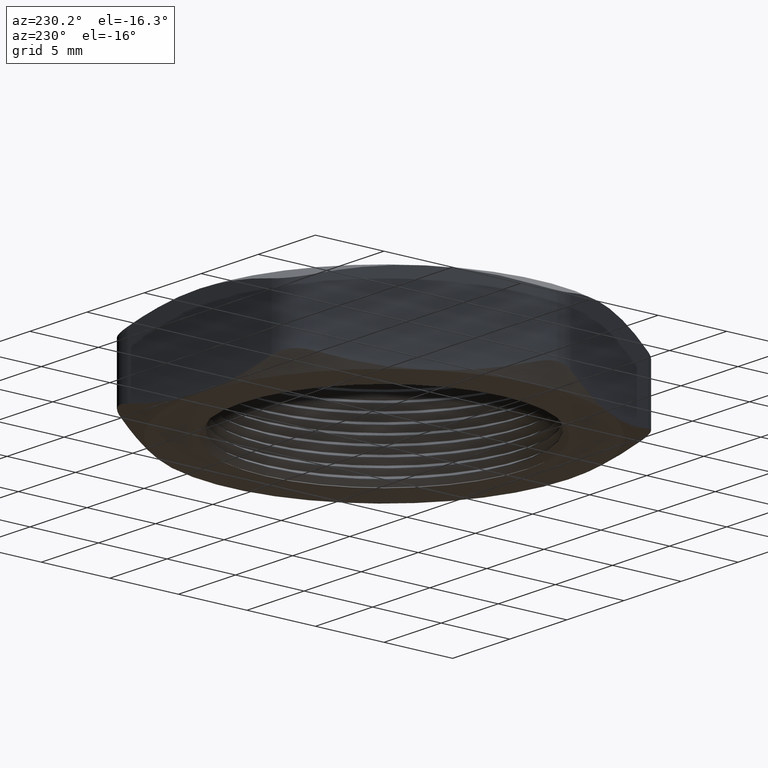
[diagram: clean part render]
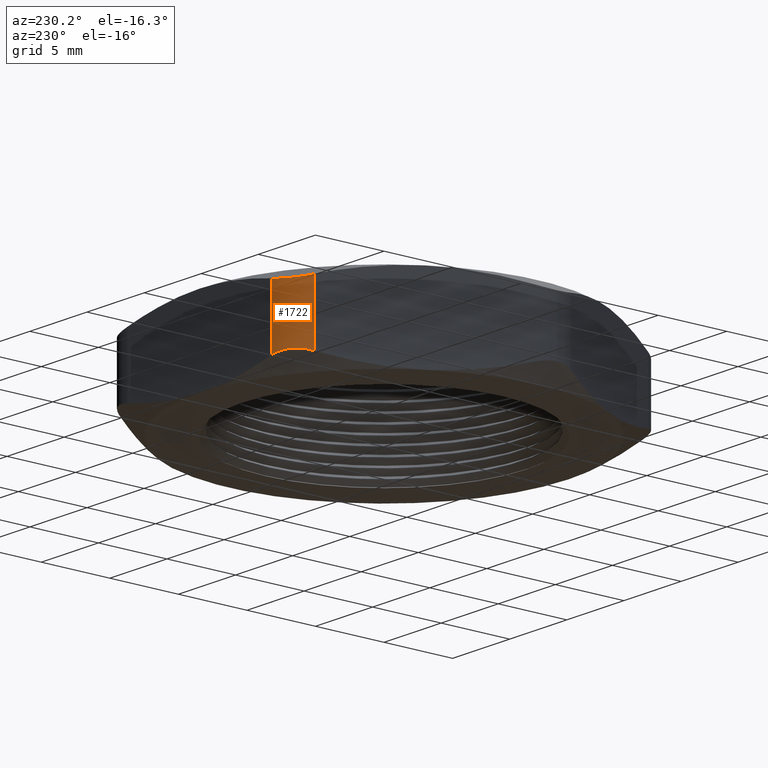
[diagram: same view with one face highlighted and labeled with its STEP entity id]
A machine part, auxiliary view. The second image highlights one B-rep face of the part: STEP entity #1722.
In plain terms, the highlighted cylindrical surface (partial cylindrical patch) has radius 2.54 mm, axis along (0, 0, -1).
Its self-contained STEP definition (entity closure, byte-faithful):
#399 = CARTESIAN_POINT ( 'NONE',  ( -0.3348631561299828000, 0.4800000000000001500, 0.03190638126214313800 ) ) ;
#400 = DIRECTION ( 'NONE',  ( 0.0000000000000000000, 0.0000000000000000000, -1.000000000000000000 ) ) ;
#401 = VECTOR ( 'NONE', #400, 39.37007874015748100 ) ;
#402 = CARTESIAN_POINT ( 'NONE',  ( -0.3348631561299828500, 0.4800000000000000900, 0.2399999999999999900 ) ) ;
#403 = LINE ( 'NONE', #402, #401 ) ;
#410 = CARTESIAN_POINT ( 'NONE',  ( -0.3348631561299828500, 0.4800000000000000900, 0.2080936187378568700 ) ) ;
#668 = VERTEX_POINT ( 'NONE', #806 ) ;
#806 = CARTESIAN_POINT ( 'NONE',  ( -0.2482606157515389600, 0.5300000000000001400, 0.03190638126214309000 ) ) ;
#825 = CYLINDRICAL_SURFACE ( 'NONE', #920, 0.09999999999999999200 ) ;
#826 = FACE_OUTER_BOUND ( 'NONE', #1724, .T. ) ;
#876 = DIRECTION ( 'NONE',  ( -1.000000000000000000, 0.0000000000000000000, 0.0000000000000000000 ) ) ;
#917 = DIRECTION ( 'NONE',  ( 0.0000000000000000000, 0.0000000000000000000, -1.000000000000000000 ) ) ;
#918 = CARTESIAN_POINT ( 'NONE',  ( -0.2482606157515389600, 0.4300000000000000500, 0.2399999999999999900 ) ) ;
#920 = AXIS2_PLACEMENT_3D ( 'NONE', #918, #917, #876 ) ;
#922 = B_SPLINE_CURVE_WITH_KNOTS ( 'NONE', 3,
 ( #926, #925, #1034, #1033, #1032, #1031, #1030, #1029, #1028, #1027 ),
 .UNSPECIFIED., .F., .F.,
 ( 4, 2, 2, 2, 4 ),
 ( 2.491306920542243800E-018, 0.0006680279323233929300, 0.001336055864646783300, 0.002004083796970176300, 0.002672111729293569100 ),
 .UNSPECIFIED. ) ;
#925 = CARTESIAN_POINT ( 'NONE',  ( -0.3305474258513002000, 0.4874750641144418000, 0.03402026000118035100 ) ) ;
#926 = CARTESIAN_POINT ( 'NONE',  ( -0.3348631561299828000, 0.4800000000000001500, 0.03190638126214313800 ) ) ;
#938 = DIRECTION ( 'NONE',  ( 0.0000000000000000000, 0.0000000000000000000, 1.000000000000000000 ) ) ;
#939 = VECTOR ( 'NONE', #938, 39.37007874015748100 ) ;
#940 = CARTESIAN_POINT ( 'NONE',  ( -0.2482606157515389000, 0.5300000000000001400, 0.2399999999999999900 ) ) ;
#941 = LINE ( 'NONE', #940, #939 ) ;
#950 = CARTESIAN_POINT ( 'NONE',  ( -0.2482606157515389900, 0.5300000000000001400, 0.2080936187378568900 ) ) ;
#971 = CARTESIAN_POINT ( 'NONE',  ( -0.3348631561299828500, 0.4800000000000000900, 0.2080936187378568700 ) ) ;
#972 = CARTESIAN_POINT ( 'NONE',  ( -0.3305463269922460100, 0.4874769673941545800, 0.2059792017689853500 ) ) ;
#973 = CARTESIAN_POINT ( 'NONE',  ( -0.3251960974889903700, 0.4944721462800848500, 0.2043413060484505200 ) ) ;
#974 = CARTESIAN_POINT ( 'NONE',  ( -0.3129031630985333300, 0.5067923633483563100, 0.2021571432969640200 ) ) ;
#975 = CARTESIAN_POINT ( 'NONE',  ( -0.3057962390927458400, 0.5122600364598978200, 0.2015905404625064900 ) ) ;
#976 = CARTESIAN_POINT ( 'NONE',  ( -0.2905843605529146400, 0.5210261620504401700, 0.2015973893732987700 ) ) ;
#977 = CARTESIAN_POINT ( 'NONE',  ( -0.2823689258964633400, 0.5244102078064885000, 0.2021617336542234100 ) ) ;
#978 = CARTESIAN_POINT ( 'NONE',  ( -0.2654429589481257000, 0.5289011185036924800, 0.2043704327233681300 ) ) ;
#979 = CARTESIAN_POINT ( 'NONE',  ( -0.2568920763089041500, 0.5299999999999998000, 0.2059797399988196300 ) ) ;
#980 = CARTESIAN_POINT ( 'NONE',  ( -0.2482606157515389900, 0.5300000000000001400, 0.2080936187378568900 ) ) ;
#983 = B_SPLINE_CURVE_WITH_KNOTS ( 'NONE', 3,
 ( #980, #979, #978, #977, #976, #975, #974, #973, #972, #971 ),
 .UNSPECIFIED., .F., .F.,
 ( 4, 2, 2, 2, 4 ),
 ( 8.673617379884034500E-019, 0.0006680279323233927200, 0.001336055864646784600, 0.002004083796970176300, 0.002672111729293568300 ),
 .UNSPECIFIED. ) ;
#1027 = CARTESIAN_POINT ( 'NONE',  ( -0.2482606157515389600, 0.5300000000000001400, 0.03190638126214309000 ) ) ;
#1028 = CARTESIAN_POINT ( 'NONE',  ( -0.2568942740270130900, 0.5300000000000005800, 0.03402079823101471900 ) ) ;
#1029 = CARTESIAN_POINT ( 'NONE',  ( -0.2656273913978731700, 0.5288641547770692700, 0.03565869395154950400 ) ) ;
#1030 = CARTESIAN_POINT ( 'NONE',  ( -0.2824434795543632200, 0.5243782698420136300, 0.03784285670303592900 ) ) ;
#1031 = CARTESIAN_POINT ( 'NONE',  ( -0.2907320853714410700, 0.5209573296660071600, 0.03840945953749352200 ) ) ;
#1032 = CARTESIAN_POINT ( 'NONE',  ( -0.3059297120955312100, 0.5121665192065010300, 0.03840261062670119500 ) ) ;
#1033 = CARTESIAN_POINT ( 'NONE',  ( -0.3129680990160637100, 0.5067437669689073300, 0.03783826634577654200 ) ) ;
#1034 = CARTESIAN_POINT ( 'NONE',  ( -0.3253203252401384900, 0.4943309049566330100, 0.03562956727663185700 ) ) ;
#1702 = ORIENTED_EDGE ( 'NONE', *, *, #2422, .F. ) ;
#1703 = ORIENTED_EDGE ( 'NONE', *, *, #1768, .F. ) ;
#1722 = ADVANCED_FACE ( 'NONE', ( #826 ), #825, .T. ) ;
#1724 = EDGE_LOOP ( 'NONE', ( #1737, #1736, #1703, #1702 ) ) ;
#1736 = ORIENTED_EDGE ( 'NONE', *, *, #1806, .F. ) ;
#1737 = ORIENTED_EDGE ( 'NONE', *, *, #1815, .F. ) ;
#1768 = EDGE_CURVE ( 'NONE', #2423, #668, #922, .T. ) ;
#1805 = VERTEX_POINT ( 'NONE', #950 ) ;
#1806 = EDGE_CURVE ( 'NONE', #668, #1805, #941, .T. ) ;
#1815 = EDGE_CURVE ( 'NONE', #1805, #2420, #983, .T. ) ;
#2420 = VERTEX_POINT ( 'NONE', #410 ) ;
#2422 = EDGE_CURVE ( 'NONE', #2420, #2423, #403, .T. ) ;
#2423 = VERTEX_POINT ( 'NONE', #399 ) ;